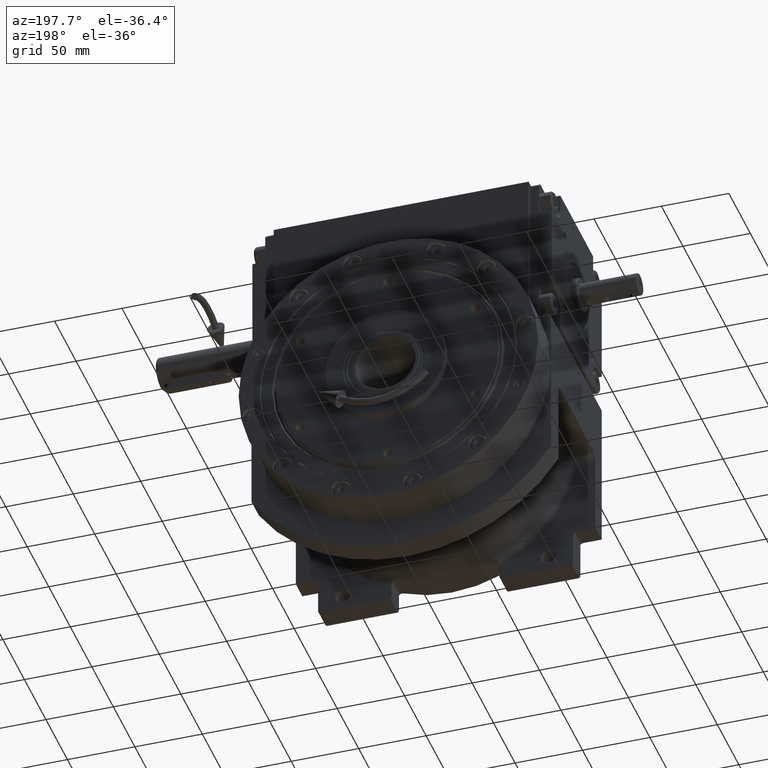
[diagram: clean part render]
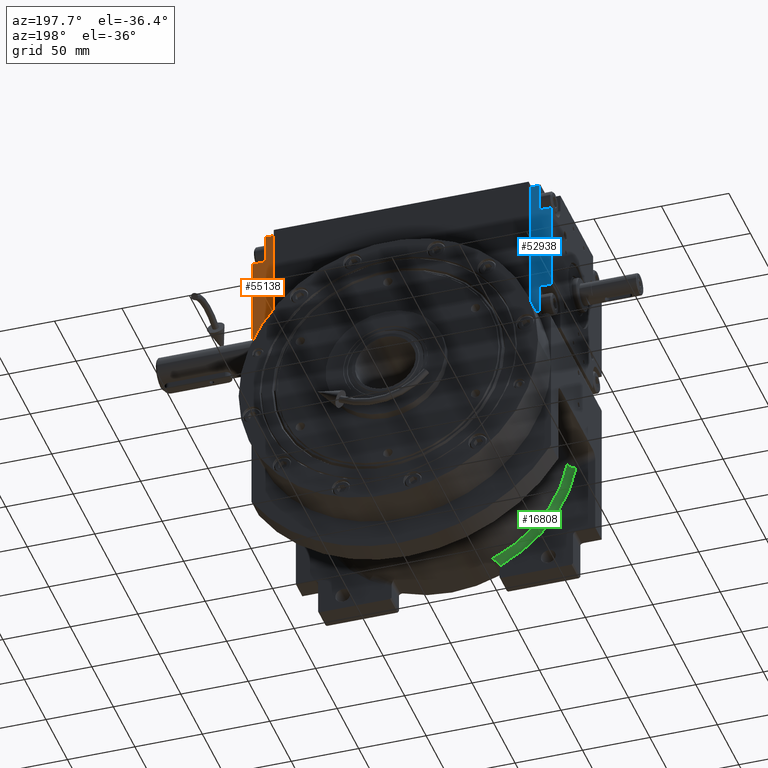
[diagram: same view with three faces highlighted in distinct colors, each labeled with its STEP entity id]
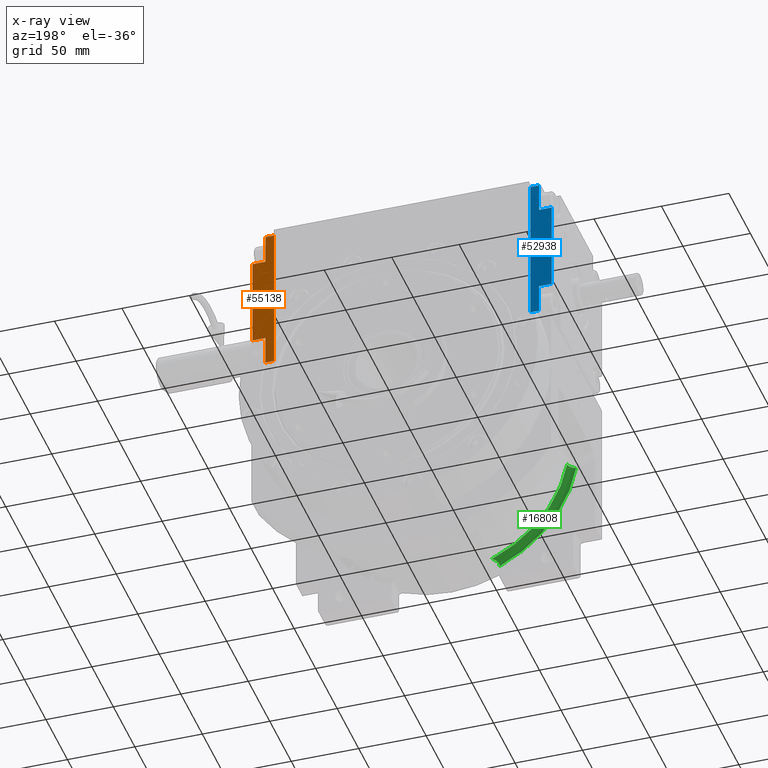
[diagram: x-ray of the same camera — body ghosted, the three highlighted faces saturated]
A machine part, auxiliary view with three faces highlighted in distinct colors.
The next image is the same camera in x-ray (body ghosted, the three faces saturated) — at least one of them is partly hidden behind the body in this view.
Their STEP definitions:

[orange] entity #55138 — the highlighted planar face has unit normal (0, 1, -0).
#1459 = CARTESIAN_POINT ( 'NONE',  ( 62.50000000000093081, -16.00000000000158096, 33.50000000000001421 ) ) ;
#1497 = LINE ( 'NONE', #60451, #61988 ) ;
#2130 = LINE ( 'NONE', #1459, #53498 ) ;
#4141 = LINE ( 'NONE', #24709, #63409 ) ;
#4949 = CARTESIAN_POINT ( 'NONE',  ( 62.50000000000052580, -6.500000000001573852, 33.50000000000001421 ) ) ;
#8084 = VECTOR ( 'NONE', #49717, 1000.000000000000000 ) ;
#9142 = VECTOR ( 'NONE', #40651, 1000.000000000000000 ) ;
#9959 = VERTEX_POINT ( 'NONE', #4949 ) ;
#10492 = LINE ( 'NONE', #42905, #41801 ) ;
#11844 = VERTEX_POINT ( 'NONE', #14874 ) ;
#12930 = VECTOR ( 'NONE', #37883, 1000.000000000000000 ) ;
#13094 = LINE ( 'NONE', #34396, #9142 ) ;
#14137 = VERTEX_POINT ( 'NONE', #67714 ) ;
#14874 = CARTESIAN_POINT ( 'NONE',  ( 62.50000000000052580, -1.582067810090848070E-12, 55.00000000000000711 ) ) ;
#18267 = VECTOR ( 'NONE', #57725, 1000.000000000000000 ) ;
#18605 = CARTESIAN_POINT ( 'NONE',  ( 62.50000000000093081, -16.00000000000158096, 33.50000000000001421 ) ) ;
#19562 = ORIENTED_EDGE ( 'NONE', *, *, #24336, .F. ) ;
#20382 = CARTESIAN_POINT ( 'NONE',  ( 62.50000000000052580, -6.500000000001573852, 55.00000000000000711 ) ) ;
#20532 = CARTESIAN_POINT ( 'NONE',  ( 62.50000000000000000, -16.00000000000105516, -33.49999999999894840 ) ) ;
#21051 = VERTEX_POINT ( 'NONE', #20532 ) ;
#21733 = VERTEX_POINT ( 'NONE', #54964 ) ;
#22279 = EDGE_LOOP ( 'NONE', ( #60108, #54168, #62007, #63143, #40909, #26375, #19562, #51903 ) ) ;
#22288 = VERTEX_POINT ( 'NONE', #67708 ) ;
#22531 = FACE_OUTER_BOUND ( 'NONE', #22279, .T. ) ;
#23999 = EDGE_CURVE ( 'NONE', #51237, #21051, #2130, .T. ) ;
#24336 = EDGE_CURVE ( 'NONE', #11844, #14137, #42417, .T. ) ;
#24709 = CARTESIAN_POINT ( 'NONE',  ( 62.50000000000052580, -6.500000000001573852, 55.00000000000000711 ) ) ;
#26375 = ORIENTED_EDGE ( 'NONE', *, *, #36184, .F. ) ;
#28453 = LINE ( 'NONE', #49024, #8084 ) ;
#31357 = AXIS2_PLACEMENT_3D ( 'NONE', #38898, #53939, #43792 ) ;
#32446 = DIRECTION ( 'NONE',  ( 2.320366121466574645E-14, -1.000000000000000000, 2.109423746787981626E-15 ) ) ;
#33914 = DIRECTION ( 'NONE',  ( -2.320366121466574645E-14, 1.000000000000000000, -2.109423746787981626E-15 ) ) ;
#34396 = CARTESIAN_POINT ( 'NONE',  ( 62.49999999999987210, -6.500000000001060485, -33.49999999999894840 ) ) ;
#35253 = VERTEX_POINT ( 'NONE', #20382 ) ;
#36184 = EDGE_CURVE ( 'NONE', #14137, #22288, #28453, .T. ) ;
#37883 = DIRECTION ( 'NONE',  ( -8.437694987151227573E-15, 2.109423746787980837E-15, -1.000000000000000000 ) ) ;
#38898 = CARTESIAN_POINT ( 'NONE',  ( 62.50000000000020606, -1.582067810090848070E-12, 58.00000000000000711 ) ) ;
#39559 = CARTESIAN_POINT ( 'NONE',  ( 62.50000000000093081, -16.00000000000158096, 33.50000000000001421 ) ) ;
#40651 = DIRECTION ( 'NONE',  ( -8.437694987151227573E-15, 2.109423746787980837E-15, -1.000000000000000000 ) ) ;
#40909 = ORIENTED_EDGE ( 'NONE', *, *, #41786, .T. ) ;
#41786 = EDGE_CURVE ( 'NONE', #21733, #22288, #13094, .T. ) ;
#41801 = VECTOR ( 'NONE', #32446, 1000.000000000000000 ) ;
#42417 = LINE ( 'NONE', #43124, #12930 ) ;
#42905 = CARTESIAN_POINT ( 'NONE',  ( 62.50000000000052580, -1.582067810090848070E-12, 55.00000000000000711 ) ) ;
#43124 = CARTESIAN_POINT ( 'NONE',  ( 62.50000000000052580, -1.582067810090848070E-12, 55.00000000000000711 ) ) ;
#43792 = DIRECTION ( 'NONE',  ( -8.437694987151227573E-15, 2.109423746787980837E-15, -1.000000000000000000 ) ) ;
#44563 = EDGE_CURVE ( 'NONE', #51237, #9959, #66456, .T. ) ;
#46306 = EDGE_CURVE ( 'NONE', #21051, #21733, #1497, .T. ) ;
#49024 = CARTESIAN_POINT ( 'NONE',  ( 62.49999999999953104, -1.054711873393898713E-12, -54.99999999999947420 ) ) ;
#49717 = DIRECTION ( 'NONE',  ( 2.320366121466574645E-14, -1.000000000000000000, 2.109423746787981626E-15 ) ) ;
#50545 = EDGE_CURVE ( 'NONE', #35253, #9959, #4141, .T. ) ;
#51237 = VERTEX_POINT ( 'NONE', #18605 ) ;
#51903 = ORIENTED_EDGE ( 'NONE', *, *, #65525, .T. ) ;
#53498 = VECTOR ( 'NONE', #55492, 1000.000000000000000 ) ;
#53939 = DIRECTION ( 'NONE',  ( 1.000000000000000000, -2.320366121466569596E-14, -8.437694987151276482E-15 ) ) ;
#54168 = ORIENTED_EDGE ( 'NONE', *, *, #44563, .F. ) ;
#54964 = CARTESIAN_POINT ( 'NONE',  ( 62.49999999999987210, -6.500000000001060485, -33.49999999999894840 ) ) ;
#55138 = ADVANCED_FACE ( 'NONE', ( #22531 ), #60571, .T. ) ;
#55492 = DIRECTION ( 'NONE',  ( -8.437694987151227573E-15, 2.109423746787980837E-15, -1.000000000000000000 ) ) ;
#57725 = DIRECTION ( 'NONE',  ( -2.320366121466574645E-14, 1.000000000000000000, -2.109423746787981626E-15 ) ) ;
#60108 = ORIENTED_EDGE ( 'NONE', *, *, #50545, .T. ) ;
#60451 = CARTESIAN_POINT ( 'NONE',  ( 62.50000000000000000, -16.00000000000105516, -33.49999999999894840 ) ) ;
#60571 = PLANE ( 'NONE',  #31357 ) ;
#61988 = VECTOR ( 'NONE', #33914, 1000.000000000000000 ) ;
#62007 = ORIENTED_EDGE ( 'NONE', *, *, #23999, .T. ) ;
#62411 = DIRECTION ( 'NONE',  ( -8.437694987151227573E-15, 2.109423746787980837E-15, -1.000000000000000000 ) ) ;
#63143 = ORIENTED_EDGE ( 'NONE', *, *, #46306, .T. ) ;
#63409 = VECTOR ( 'NONE', #62411, 1000.000000000000000 ) ;
#65525 = EDGE_CURVE ( 'NONE', #11844, #35253, #10492, .T. ) ;
#66456 = LINE ( 'NONE', #39559, #18267 ) ;
#67708 = CARTESIAN_POINT ( 'NONE',  ( 62.49999999999976552, -6.500000000001060485, -54.99999999999947420 ) ) ;
#67714 = CARTESIAN_POINT ( 'NONE',  ( 62.49999999999953104, -1.054711873393898713E-12, -54.99999999999947420 ) ) ;

[blue] entity #52938 — the highlighted planar face has unit normal (-0, 1, 0).
#123 = FACE_OUTER_BOUND ( 'NONE', #48642, .T. ) ;
#2088 = VECTOR ( 'NONE', #37838, 1000.000000000000000 ) ;
#2400 = CARTESIAN_POINT ( 'NONE',  ( 62.50000000000294165, -6.499999999999964473, 55.00000000000330402 ) ) ;
#3452 = VECTOR ( 'NONE', #58650, 1000.000000000000000 ) ;
#4088 = VERTEX_POINT ( 'NONE', #68322 ) ;
#4265 = EDGE_CURVE ( 'NONE', #21918, #14288, #10355, .T. ) ;
#5196 = CARTESIAN_POINT ( 'NONE',  ( 62.49999999999669598, 0.000000000000000000, -54.99999999999627676 ) ) ;
#5463 = CARTESIAN_POINT ( 'NONE',  ( 62.49999999999669598, 0.000000000000000000, -54.99999999999627676 ) ) ;
#5681 = EDGE_CURVE ( 'NONE', #39916, #27360, #7238, .T. ) ;
#7238 = LINE ( 'NONE', #50125, #65534 ) ;
#10015 = CARTESIAN_POINT ( 'NONE',  ( 62.50000000000147082, -6.499999999999992006, 33.50000000000378009 ) ) ;
#10355 = LINE ( 'NONE', #48365, #56387 ) ;
#10733 = VECTOR ( 'NONE', #53835, 1000.000000000000000 ) ;
#12318 = LINE ( 'NONE', #46492, #66869 ) ;
#12771 = CARTESIAN_POINT ( 'NONE',  ( 62.49999999999783995, -6.499999999999977796, -33.49999999999625544 ) ) ;
#14288 = VERTEX_POINT ( 'NONE', #5196 ) ;
#15782 = DIRECTION ( 'NONE',  ( 1.000000000000000000, -6.630081955653464396E-28, -5.662137425588298356E-14 ) ) ;
#16245 = DIRECTION ( 'NONE',  ( -5.662137425588298356E-14, -7.549516567451077097E-15, -1.000000000000000000 ) ) ;
#16545 = CARTESIAN_POINT ( 'NONE',  ( 62.49999999999783995, -15.99999999999998579, -33.49999999999625544 ) ) ;
#17042 = ORIENTED_EDGE ( 'NONE', *, *, #18074, .T. ) ;
#18074 = EDGE_CURVE ( 'NONE', #4088, #24174, #44946, .T. ) ;
#18445 = EDGE_CURVE ( 'NONE', #21918, #4088, #12318, .T. ) ;
#18775 = ORIENTED_EDGE ( 'NONE', *, *, #31608, .T. ) ;
#19043 = DIRECTION ( 'NONE',  ( -5.662137425588298356E-14, -7.549516567451077097E-15, -1.000000000000000000 ) ) ;
#21918 = VERTEX_POINT ( 'NONE', #33504 ) ;
#24174 = VERTEX_POINT ( 'NONE', #10015 ) ;
#26619 = PLANE ( 'NONE',  #47449 ) ;
#27360 = VERTEX_POINT ( 'NONE', #30094 ) ;
#27472 = CARTESIAN_POINT ( 'NONE',  ( 62.50000000000147082, -15.99999999999997335, 33.50000000000336087 ) ) ;
#27648 = ORIENTED_EDGE ( 'NONE', *, *, #18445, .T. ) ;
#30094 = CARTESIAN_POINT ( 'NONE',  ( 62.49999999999783995, -15.99999999999998579, -33.49999999999625544 ) ) ;
#31171 = LINE ( 'NONE', #32556, #10733 ) ;
#31213 = ORIENTED_EDGE ( 'NONE', *, *, #4265, .F. ) ;
#31226 = VERTEX_POINT ( 'NONE', #12771 ) ;
#31294 = VECTOR ( 'NONE', #45607, 1000.000000000000000 ) ;
#31608 = EDGE_CURVE ( 'NONE', #27360, #31226, #48993, .T. ) ;
#32307 = ORIENTED_EDGE ( 'NONE', *, *, #5681, .T. ) ;
#32556 = CARTESIAN_POINT ( 'NONE',  ( 62.49999999999783995, -6.499999999999977796, -33.49999999999625544 ) ) ;
#33133 = LINE ( 'NONE', #43927, #3452 ) ;
#33504 = CARTESIAN_POINT ( 'NONE',  ( 62.50000000000294165, 9.436895709313830594E-13, 55.00000000000330402 ) ) ;
#37838 = DIRECTION ( 'NONE',  ( 1.919172807174472722E-28, 1.000000000000000000, 7.549516567451075519E-15 ) ) ;
#39916 = VERTEX_POINT ( 'NONE', #27472 ) ;
#40703 = EDGE_CURVE ( 'NONE', #39916, #24174, #33133, .T. ) ;
#41974 = CARTESIAN_POINT ( 'NONE',  ( 62.50000000000241585, 9.436895709313830594E-13, 58.00000000000330402 ) ) ;
#43927 = CARTESIAN_POINT ( 'NONE',  ( 62.50000000000147082, -15.99999999999997335, 33.50000000000336087 ) ) ;
#44946 = LINE ( 'NONE', #2400, #31294 ) ;
#45607 = DIRECTION ( 'NONE',  ( -5.662137425588298356E-14, -7.549516567451077097E-15, -1.000000000000000000 ) ) ;
#46492 = CARTESIAN_POINT ( 'NONE',  ( 62.50000000000294165, 9.436895709313830594E-13, 55.00000000000330402 ) ) ;
#47220 = DIRECTION ( 'NONE',  ( -5.662137425588298356E-14, -7.549516567451077097E-15, -1.000000000000000000 ) ) ;
#47449 = AXIS2_PLACEMENT_3D ( 'NONE', #41974, #15782, #47220 ) ;
#48010 = LINE ( 'NONE', #5463, #57181 ) ;
#48365 = CARTESIAN_POINT ( 'NONE',  ( 62.50000000000294165, 9.436895709313830594E-13, 55.00000000000330402 ) ) ;
#48642 = EDGE_LOOP ( 'NONE', ( #17042, #66104, #32307, #18775, #49970, #52997, #31213, #27648 ) ) ;
#48993 = LINE ( 'NONE', #16545, #2088 ) ;
#49970 = ORIENTED_EDGE ( 'NONE', *, *, #66795, .T. ) ;
#50125 = CARTESIAN_POINT ( 'NONE',  ( 62.50000000000147082, -15.99999999999997335, 33.50000000000336087 ) ) ;
#52938 = ADVANCED_FACE ( 'NONE', ( #123 ), #26619, .T. ) ;
#52997 = ORIENTED_EDGE ( 'NONE', *, *, #56768, .F. ) ;
#53835 = DIRECTION ( 'NONE',  ( -5.662137425588298356E-14, -7.549516567451077097E-15, -1.000000000000000000 ) ) ;
#56387 = VECTOR ( 'NONE', #16245, 1000.000000000000000 ) ;
#56768 = EDGE_CURVE ( 'NONE', #14288, #61241, #48010, .T. ) ;
#57181 = VECTOR ( 'NONE', #58188, 1000.000000000000000 ) ;
#58188 = DIRECTION ( 'NONE',  ( -1.919172807174472722E-28, -1.000000000000000000, -7.549516567451075519E-15 ) ) ;
#58650 = DIRECTION ( 'NONE',  ( 1.919172807174472722E-28, 1.000000000000000000, 7.549516567451075519E-15 ) ) ;
#61241 = VERTEX_POINT ( 'NONE', #68848 ) ;
#65534 = VECTOR ( 'NONE', #19043, 1000.000000000000000 ) ;
#66104 = ORIENTED_EDGE ( 'NONE', *, *, #40703, .F. ) ;
#66795 = EDGE_CURVE ( 'NONE', #31226, #61241, #31171, .T. ) ;
#66869 = VECTOR ( 'NONE', #67474, 1000.000000000000000 ) ;
#67474 = DIRECTION ( 'NONE',  ( -1.919172807174472722E-28, -1.000000000000000000, -7.549516567451075519E-15 ) ) ;
#68322 = CARTESIAN_POINT ( 'NONE',  ( 62.50000000000294165, -6.499999999999964473, 55.00000000000330402 ) ) ;
#68848 = CARTESIAN_POINT ( 'NONE',  ( 62.49999999999669598, -6.499999999999992006, -54.99999999999627676 ) ) ;

[green] entity #16808 — the highlighted toroidal blend (fillet) surface has major radius 98 mm and minor (blend) radius 5 mm.
#193 = DIRECTION ( 'NONE',  ( 0.000000000000000000, 1.000000000000000000, 0.000000000000000000 ) ) ;
#539 = TOROIDAL_SURFACE ( 'NONE', #50647, 98.00000000000000000, 5.000000000000000000 ) ;
#898 = EDGE_CURVE ( 'NONE', #63218, #41789, #19731, .T. ) ;
#2459 = CARTESIAN_POINT ( 'NONE',  ( -38.27633996141278772, -36.51729617131757522, -85.86833729513480762 ) ) ;
#5223 = CARTESIAN_POINT ( 'NONE',  ( -4.517455316885850268E-28, -33.50000000000000000, 0.000000000000000000 ) ) ;
#5406 = CARTESIAN_POINT ( 'NONE',  ( -2.842170943040399481E-14, -38.50000000000000000, -1.421085471520200056E-14 ) ) ;
#5622 = CARTESIAN_POINT ( 'NONE',  ( -37.43900592288628815, -35.55903499756681185, -85.61562562443802449 ) ) ;
#5965 = CARTESIAN_POINT ( 'NONE',  ( -37.38339001186695043, -35.49299637211610303, -85.60790934895499049 ) ) ;
#6646 = CARTESIAN_POINT ( 'NONE',  ( -38.52674398445229542, -36.79388872155934820, -85.98742272752714655 ) ) ;
#7675 = CARTESIAN_POINT ( 'NONE',  ( -40.00000000000000000, -38.43488273359274388, -88.58329413608420566 ) ) ;
#8337 = EDGE_CURVE ( 'NONE', #63218, #35271, #47405, .T. ) ;
#11780 = DIRECTION ( 'NONE',  ( -0.3854166666666659080, 0.000000000000000000, -0.9227426472508768462 ) ) ;
#12207 = CARTESIAN_POINT ( 'NONE',  ( -38.28231176553737924, -36.52389674779055184, -85.87115368578101027 ) ) ;
#12446 = EDGE_CURVE ( 'NONE', #43753, #35271, #61381, .T. ) ;
#12792 = AXIS2_PLACEMENT_3D ( 'NONE', #39513, #54544, #27354 ) ;
#12892 = CARTESIAN_POINT ( 'NONE',  ( -38.26736965768791521, -36.50737811093878804, -85.86412501753119386 ) ) ;
#14525 = AXIS2_PLACEMENT_3D ( 'NONE', #35763, #46233, #46925 ) ;
#15225 = ORIENTED_EDGE ( 'NONE', *, *, #898, .F. ) ;
#15712 = CARTESIAN_POINT ( 'NONE',  ( -36.30689140111833524, -34.14059137671511479, -85.65642236312653779 ) ) ;
#16808 = ADVANCED_FACE ( 'NONE', ( #35950 ), #539, .F. ) ;
#17098 = ORIENTED_EDGE ( 'NONE', *, *, #12446, .F. ) ;
#17100 = CARTESIAN_POINT ( 'NONE',  ( -39.98512086673643040, -38.33643480902824052, -87.92726384565773401 ) ) ;
#17133 = EDGE_CURVE ( 'NONE', #22066, #41789, #47324, .T. ) ;
#19731 = CIRCLE ( 'NONE', #28649, 93.00000000000001421 ) ;
#21326 = CARTESIAN_POINT ( 'NONE',  ( -36.08002314524775755, -33.83317273475556419, -85.71637821417196790 ) ) ;
#21681 = CARTESIAN_POINT ( 'NONE',  ( -37.54197476222463337, -35.68080505171460715, -85.63190908982494420 ) ) ;
#22066 = VERTEX_POINT ( 'NONE', #57748 ) ;
#23380 = CARTESIAN_POINT ( 'NONE',  ( -39.38487773243508627, -37.69798281229521564, -86.76279206020807067 ) ) ;
#24065 = CARTESIAN_POINT ( 'NONE',  ( -39.12874850756631417, -37.43175920993363093, -86.46606755813665757 ) ) ;
#25154 = ORIENTED_EDGE ( 'NONE', *, *, #8337, .T. ) ;
#25602 = CARTESIAN_POINT ( 'NONE',  ( -40.00000000000000000, -38.43488273359274388, -88.58329413608420566 ) ) ;
#26896 = CARTESIAN_POINT ( 'NONE',  ( -37.46662226150139219, -35.59175345229849796, -85.61978513768987398 ) ) ;
#27251 = CARTESIAN_POINT ( 'NONE',  ( -37.88635589269513559, -36.07993595324333569, -85.71515031031040621 ) ) ;
#27354 = DIRECTION ( 'NONE',  ( -9.856004901109832034E-12, -1.000000000000000000, 5.955860804540693918E-11 ) ) ;
#27384 = DIRECTION ( 'NONE',  ( -0.4081632653061224580, 0.000000000000000000, -0.9129089488304098499 ) ) ;
#27934 = CARTESIAN_POINT ( 'NONE',  ( -39.44384697315631172, -37.75929739751466485, -86.84320483544715330 ) ) ;
#28440 = ORIENTED_EDGE ( 'NONE', *, *, #17133, .T. ) ;
#28623 = CARTESIAN_POINT ( 'NONE',  ( -39.31763286474674857, -37.62815726172872388, -86.67665925042284414 ) ) ;
#28649 = AXIS2_PLACEMENT_3D ( 'NONE', #33416, #54696, #11780 ) ;
#32828 = CARTESIAN_POINT ( 'NONE',  ( -37.28380619752054059, -35.37431639968343688, -85.59588859076652057 ) ) ;
#33416 = CARTESIAN_POINT ( 'NONE',  ( -5.684341886080798963E-14, -33.50000000000000000, -4.973799150320699408E-14 ) ) ;
#33868 = CARTESIAN_POINT ( 'NONE',  ( -38.74524972143495205, -37.02824540910815898, -86.13037932659206319 ) ) ;
#34521 = CARTESIAN_POINT ( 'NONE',  ( -39.43109524861698389, -37.74602953359932656, -86.82543656250301467 ) ) ;
#34575 = CARTESIAN_POINT ( 'NONE',  ( -40.00000000000000000, -38.50000000000000000, -89.46507698536869668 ) ) ;
#35271 = VERTEX_POINT ( 'NONE', #25602 ) ;
#35763 = CARTESIAN_POINT ( 'NONE',  ( -40.00000000000915179, -32.49709200338989490, -89.46507963159299948 ) ) ;
#35950 = FACE_OUTER_BOUND ( 'NONE', #60243, .T. ) ;
#36290 = DIRECTION ( 'NONE',  ( 0.000000000000000000, -1.000000000000000000, 0.000000000000000000 ) ) ;
#36629 = DIRECTION ( 'NONE',  ( 0.9928071675485924397, 0.000000000000000000, -0.1197243837492646679 ) ) ;
#37008 = CARTESIAN_POINT ( 'NONE',  ( -36.93009603554993703, -34.94423361394583338, -85.57940164053853493 ) ) ;
#37351 = CARTESIAN_POINT ( 'NONE',  ( -37.43184684315563260, -35.55054610273698756, -85.61457609638738120 ) ) ;
#37705 = CARTESIAN_POINT ( 'NONE',  ( -37.77890696725952324, -35.95686476597705195, -85.68394881180732625 ) ) ;
#39417 = CARTESIAN_POINT ( 'NONE',  ( -38.20396387864658294, -36.43710768075566619, -85.83524961297911204 ) ) ;
#39513 = CARTESIAN_POINT ( 'NONE',  ( -96.68296670879348653, -33.50000000000000000, -16.01261841131329788 ) ) ;
#39756 = CARTESIAN_POINT ( 'NONE',  ( -38.11780586881526744, -36.34115605080709344, -85.79841718608754775 ) ) ;
#41789 = VERTEX_POINT ( 'NONE', #52206 ) ;
#42578 = CARTESIAN_POINT ( 'NONE',  ( -37.19892079125747131, -35.27228554351025736, -85.58894025091437641 ) ) ;
#42930 = CARTESIAN_POINT ( 'NONE',  ( -37.61243915655350634, -35.76331280053068440, -85.64592325929227457 ) ) ;
#43753 = VERTEX_POINT ( 'NONE', #34575 ) ;
#45219 = ORIENTED_EDGE ( 'NONE', *, *, #49898, .T. ) ;
#46233 = DIRECTION ( 'NONE',  ( -1.000000000000000000, -1.518641129715684902E-12, 1.202649543026352036E-13 ) ) ;
#46925 = DIRECTION ( 'NONE',  ( 1.518881614524506584E-12, -0.9999999999999027445, 4.408275447646492477E-07 ) ) ;
#47324 = CIRCLE ( 'NONE', #12792, 4.999999999999997335 ) ;
#47405 = B_SPLINE_CURVE_WITH_KNOTS ( 'NONE', 3,
 ( #63557, #21326, #15712, #53758, #37008, #42578, #32828, #5965, #63906, #37351, #5622, #58685, #64248, #26896, #21681, #42930, #37705, #27251, #48511, #39756, #39417, #50225, #12892, #2459, #12207, #55141, #6646, #33868, #65965, #24065, #54450, #28623, #23380, #50582, #34521, #49887, #27934, #60054, #17100, #7675 ),
 .UNSPECIFIED., .F., .F.,
 ( 4, 2, 2, 2, 1, 2, 2, 1, 1, 2, 2, 1, 1, 1, 1, 2, 2, 2, 2, 1, 1, 1, 2, 2, 4 ),
 ( 0.000000000000000000, 0.1249999999999167610, 0.2499999999998335221, 0.3124999999997910005, 0.3281249999997787881, 0.3320312499997775113, 0.3339843749997797873, 0.3359374999997820077, 0.3437499999997944422, 0.3749999999998447908, 0.4374999999999474309, 0.4687499999999984457, 0.4843750000000230926, 0.4921875000000354716, 0.4960937500000425771, 0.4980468750000451861, 0.5000000000000478506, 0.6250000000000816014, 0.6875000000000984768, 0.7187500000001078027, 0.7343750000001108003, 0.7421875000001131317, 0.7460937500001130207, 0.7500000000001127987, 1.000000000000000000 ),
 .UNSPECIFIED. ) ;
#48511 = CARTESIAN_POINT ( 'NONE',  ( -38.04163767948712405, -36.25557521495813518, -85.76941652703403918 ) ) ;
#49887 = CARTESIAN_POINT ( 'NONE',  ( -39.44017438941394005, -37.75547557741267468, -86.83806396652371973 ) ) ;
#49898 = EDGE_CURVE ( 'NONE', #43753, #22066, #54350, .T. ) ;
#50225 = CARTESIAN_POINT ( 'NONE',  ( -38.24635100765461004, -36.48411550397372594, -85.85438302228574514 ) ) ;
#50582 = CARTESIAN_POINT ( 'NONE',  ( -39.41739679898709880, -37.73178161656361596, -86.80654276834621896 ) ) ;
#50647 = AXIS2_PLACEMENT_3D ( 'NONE', #5223, #36290, #36629 ) ;
#52206 = CARTESIAN_POINT ( 'NONE',  ( -91.75016228508779648, -33.50000000000000000, -15.19564808292360070 ) ) ;
#53758 = CARTESIAN_POINT ( 'NONE',  ( -36.73194820653373682, -34.69605451372154903, -85.58795819017250039 ) ) ;
#54350 = CIRCLE ( 'NONE', #68863, 98.00000000000001421 ) ;
#54450 = CARTESIAN_POINT ( 'NONE',  ( -39.25627132905679417, -37.56444293867146200, -86.60527910127238727 ) ) ;
#54544 = DIRECTION ( 'NONE',  ( -0.1633940655952695054, 6.036850834261461552E-11, 0.9865608847548381632 ) ) ;
#54696 = DIRECTION ( 'NONE',  ( 0.000000000000000000, 1.000000000000000000, 0.000000000000000000 ) ) ;
#55141 = CARTESIAN_POINT ( 'NONE',  ( -38.28454481963986211, -36.52636437403767644, -85.87220985558523978 ) ) ;
#57748 = CARTESIAN_POINT ( 'NONE',  ( -96.68296670891950839, -38.50000000000000000, -16.01261841055244872 ) ) ;
#58685 = CARTESIAN_POINT ( 'NONE',  ( -37.44138636617806526, -35.56185744430506190, -85.61597644054842249 ) ) ;
#60054 = CARTESIAN_POINT ( 'NONE',  ( -39.79008353842780821, -38.11975192126992340, -87.33289369650513834 ) ) ;
#60243 = EDGE_LOOP ( 'NONE', ( #45219, #28440, #15225, #25154, #17098 ) ) ;
#60668 = CARTESIAN_POINT ( 'NONE',  ( -35.84375000000000000, -33.50000000000000000, -85.81506619433150718 ) ) ;
#61381 = CIRCLE ( 'NONE', #14525, 6.002907996610677976 ) ;
#63218 = VERTEX_POINT ( 'NONE', #60668 ) ;
#63557 = CARTESIAN_POINT ( 'NONE',  ( -35.84375000000000000, -33.50000000000000000, -85.81506619433150718 ) ) ;
#63906 = CARTESIAN_POINT ( 'NONE',  ( -37.40787862519194107, -35.52211333105822177, -85.61112399819360519 ) ) ;
#64248 = CARTESIAN_POINT ( 'NONE',  ( -37.44860117665270138, -35.57040734625949341, -85.61705562004161152 ) ) ;
#65965 = CARTESIAN_POINT ( 'NONE',  ( -39.03733234164712229, -37.33628961314910555, -86.37798677220101240 ) ) ;
#68863 = AXIS2_PLACEMENT_3D ( 'NONE', #5406, #193, #27384 ) ;